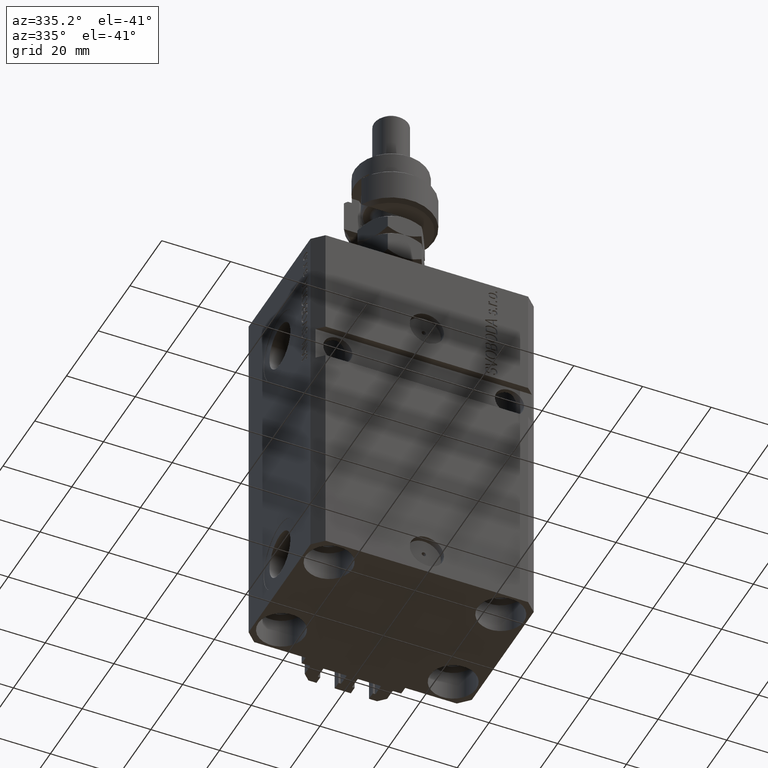
[diagram: clean part render]
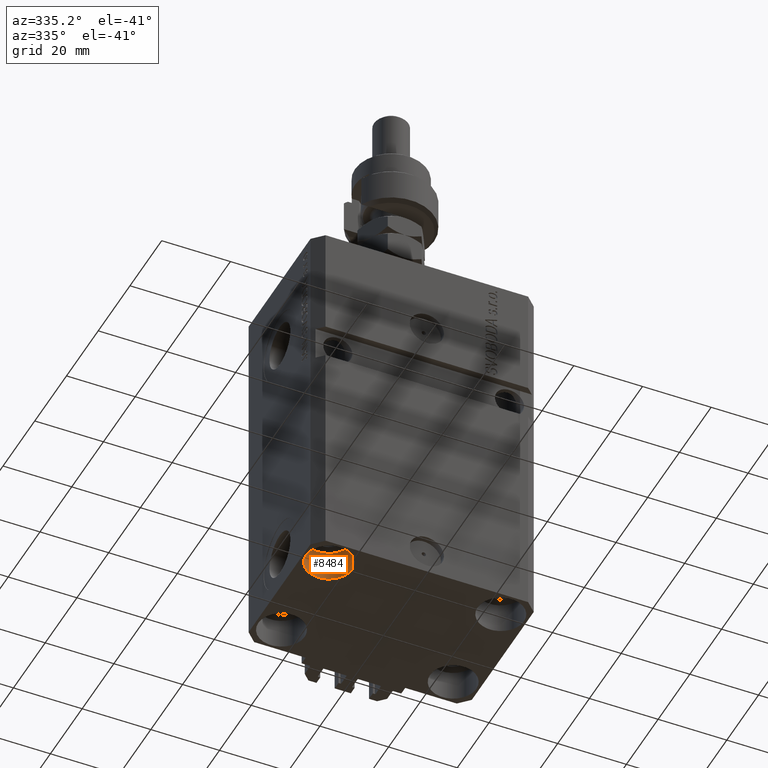
[diagram: same view with one face highlighted and labeled with its STEP entity id]
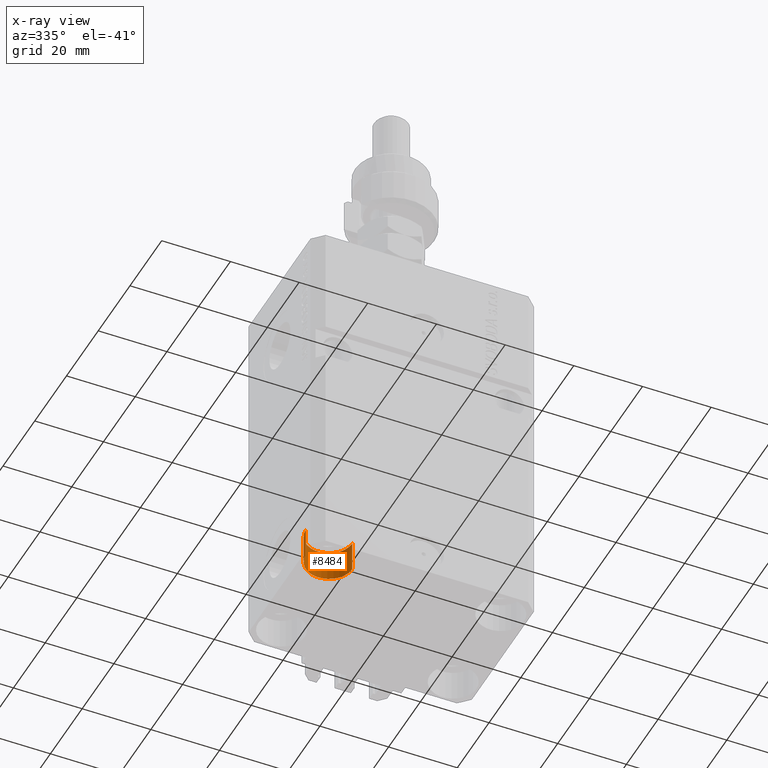
[diagram: x-ray of the same camera — body ghosted, the highlighted face saturated]
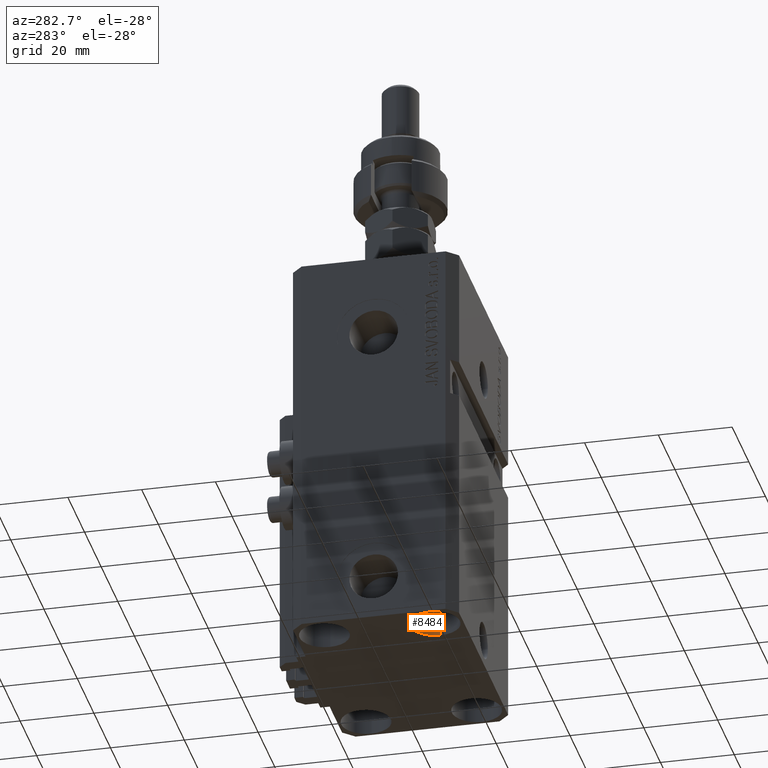
[diagram: same view with one face highlighted and labeled with its STEP entity id]
A machine part, auxiliary view. The second image highlights one B-rep face of the part: STEP entity #8484.
The next image is the same camera in x-ray: the body ghosted, the highlighted face saturated — about 0% of this face is hidden behind the body in this view.
A second angle (auxiliary view) of the same face is appended — the face is thin or edge-on in the first view.
In plain terms, the highlighted cylindrical surface (edge-blend (fillet) strip) has radius 6.75 mm, axis along (-0, -0, -1).
Its self-contained STEP definition (entity closure, byte-faithful):
#306 = DIRECTION ( 'NONE',  ( -1.000000000000000000, 0.000000000000000000, 0.000000000000000000 ) ) ;
#4829 = ORIENTED_EDGE ( 'NONE', *, *, #33481, .T. ) ;
#4991 = CARTESIAN_POINT ( 'NONE',  ( -25.00000000000000355, -15.00000000000000000, -107.0000000000000000 ) ) ;
#6333 = EDGE_LOOP ( 'NONE', ( #18967, #4829, #9931, #15892 ) ) ;
#6967 = VERTEX_POINT ( 'NONE', #14354 ) ;
#7109 = CARTESIAN_POINT ( 'NONE',  ( -31.75000000004154899, -15.00000000000000000, -107.0000000000000000 ) ) ;
#8484 = ADVANCED_FACE ( 'NONE', ( #45778 ), #34405, .F. ) ;
#8948 = AXIS2_PLACEMENT_3D ( 'NONE', #19018, #46023, #306 ) ;
#9074 = EDGE_CURVE ( 'NONE', #6967, #13688, #9214, .T. ) ;
#9214 = LINE ( 'NONE', #20341, #47663 ) ;
#9931 = ORIENTED_EDGE ( 'NONE', *, *, #17029, .T. ) ;
#12577 = DIRECTION ( 'NONE',  ( -0.000000000000000000, -0.000000000000000000, 1.000000000000000000 ) ) ;
#13688 = VERTEX_POINT ( 'NONE', #21978 ) ;
#14354 = CARTESIAN_POINT ( 'NONE',  ( -18.24999999995845812, -15.00000000000000000, -98.00000000000000000 ) ) ;
#15892 = ORIENTED_EDGE ( 'NONE', *, *, #26810, .F. ) ;
#17009 = CARTESIAN_POINT ( 'NONE',  ( -25.00000000000000355, -15.00000000000000000, -98.00000000000000000 ) ) ;
#17029 = EDGE_CURVE ( 'NONE', #32210, #49400, #20844, .T. ) ;
#18967 = ORIENTED_EDGE ( 'NONE', *, *, #9074, .F. ) ;
#19018 = CARTESIAN_POINT ( 'NONE',  ( -25.00000000000000355, -15.00000000000000000, -98.00000000000000000 ) ) ;
#19153 = AXIS2_PLACEMENT_3D ( 'NONE', #4991, #12577, #27972 ) ;
#20341 = CARTESIAN_POINT ( 'NONE',  ( -18.24999999995846167, -15.00000000000000000, -98.00000000000000000 ) ) ;
#20844 = LINE ( 'NONE', #44311, #49425 ) ;
#21639 = AXIS2_PLACEMENT_3D ( 'NONE', #17009, #28363, #44009 ) ;
#21978 = CARTESIAN_POINT ( 'NONE',  ( -18.24999999995845812, -15.00000000000000000, -107.0000000000000000 ) ) ;
#26810 = EDGE_CURVE ( 'NONE', #13688, #49400, #43335, .T. ) ;
#27972 = DIRECTION ( 'NONE',  ( 1.000000000000000000, 0.000000000000000000, 0.000000000000000000 ) ) ;
#28363 = DIRECTION ( 'NONE',  ( -0.000000000000000000, -0.000000000000000000, 1.000000000000000000 ) ) ;
#32204 = DIRECTION ( 'NONE',  ( -0.000000000000000000, -0.000000000000000000, -1.000000000000000000 ) ) ;
#32210 = VERTEX_POINT ( 'NONE', #42819 ) ;
#33481 = EDGE_CURVE ( 'NONE', #6967, #32210, #42613, .T. ) ;
#34405 = CYLINDRICAL_SURFACE ( 'NONE', #8948, 6.750000000041545434 ) ;
#42613 = CIRCLE ( 'NONE', #21639, 6.750000000041541881 ) ;
#42819 = CARTESIAN_POINT ( 'NONE',  ( -31.75000000004154899, -15.00000000000000000, -98.00000000000000000 ) ) ;
#43313 = DIRECTION ( 'NONE',  ( -0.000000000000000000, -0.000000000000000000, -1.000000000000000000 ) ) ;
#43335 = CIRCLE ( 'NONE', #19153, 6.750000000041541881 ) ;
#44009 = DIRECTION ( 'NONE',  ( 1.000000000000000000, 0.000000000000000000, 0.000000000000000000 ) ) ;
#44311 = CARTESIAN_POINT ( 'NONE',  ( -31.75000000004154899, -15.00000000000000000, -98.00000000000000000 ) ) ;
#45778 = FACE_OUTER_BOUND ( 'NONE', #6333, .T. ) ;
#46023 = DIRECTION ( 'NONE',  ( -0.000000000000000000, -0.000000000000000000, -1.000000000000000000 ) ) ;
#47663 = VECTOR ( 'NONE', #32204, 1000.000000000000000 ) ;
#49400 = VERTEX_POINT ( 'NONE', #7109 ) ;
#49425 = VECTOR ( 'NONE', #43313, 1000.000000000000000 ) ;